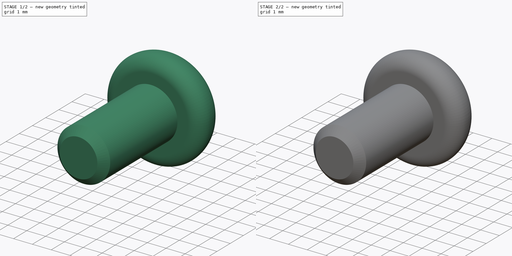
[diagram: build sequence overview — one tinted view per stage of 2, left to right]
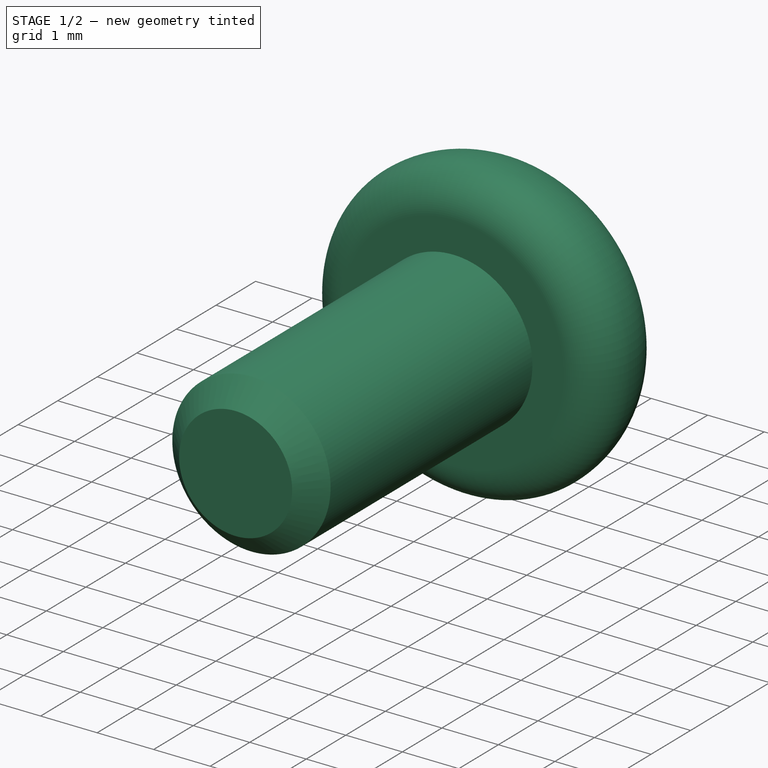
[diagram: stage 1 of 2 — iso view after this stage's code; geometry added in this stage tinted green]
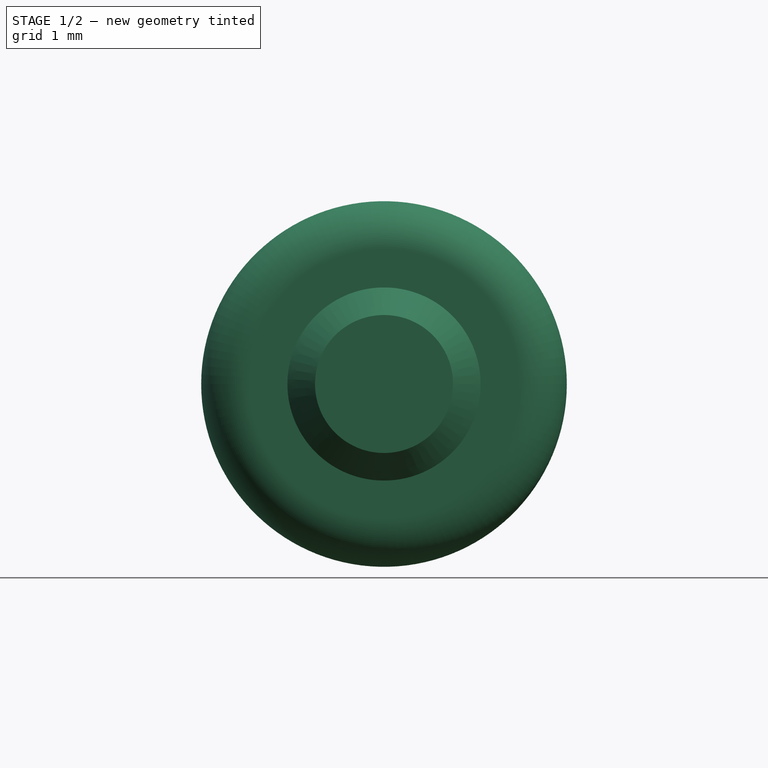
[diagram: stage 1 of 2 — front view after this stage's code; geometry added in this stage tinted green]
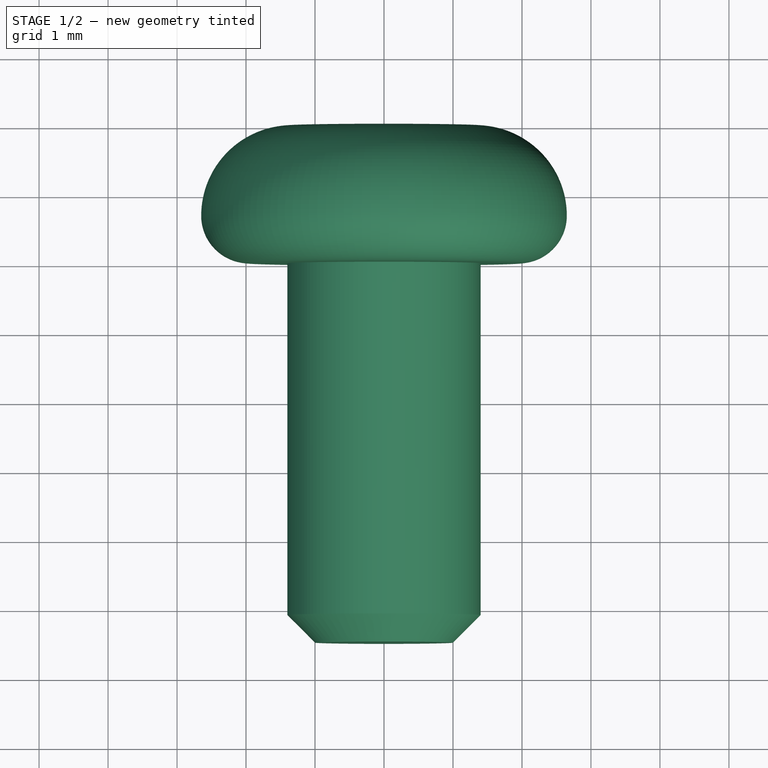
[diagram: stage 1 of 2 — top view after this stage's code; geometry added in this stage tinted green]
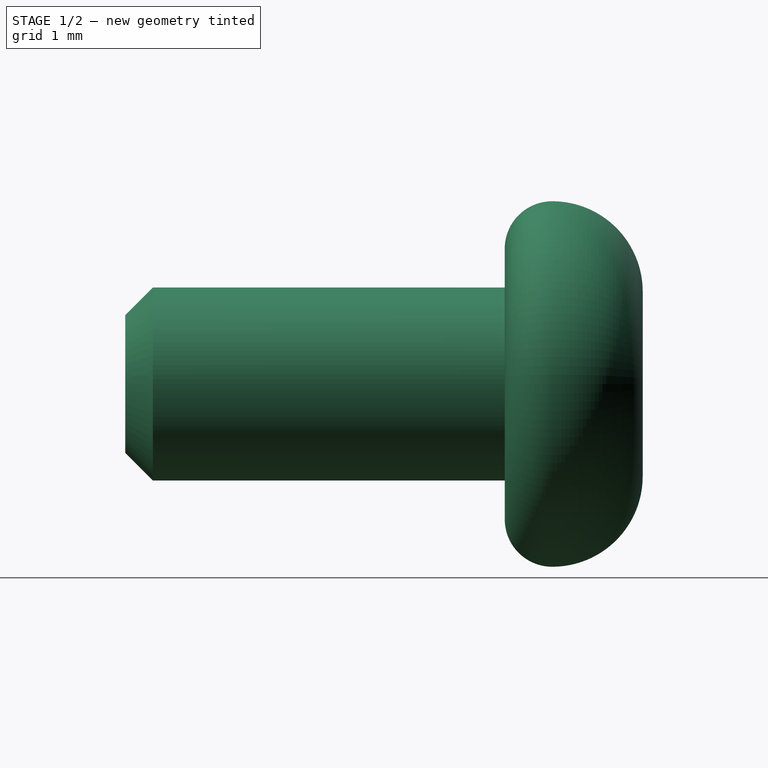
[diagram: stage 1 of 2 — right view after this stage's code; geometry added in this stage tinted green]
FCSTD DOCUMENT  (FreeCAD 0.17R13541 (Git))
Label: skrew-440UNC-hex
License: All rights reserved
LicenseURL: http://en.wikipedia.org/wiki/All_rights_reserved
objects: Sketcher::SketchObject×2, PartDesign::Revolution×1, PartDesign::Pocket×1, PartDesign::Body×1
note: 7 computed .brp shape members not serialized (recipe doc carries the construction recipe); baked Part::Feature solids carry a one-line shape summary decoded from their .brp

FEATURE [Sketcher::SketchObject] Sketch
  MapMode = 5
  Support = -> [XY_Plane]
  sketch-geometry (8):
    g0: LineSegment StartX=0 StartY=-5.5 StartZ=0 EndX=1 EndY=-5.5 EndZ=0
    g1: LineSegment StartX=1.4 StartY=-5.1 StartZ=0 EndX=1.4 EndY=0 EndZ=0
    g2: LineSegment StartX=1.4 StartY=0 StartZ=0 EndX=1.96119 EndY=0 EndZ=0
    g3: LineSegment StartX=1.33881 StartY=2 StartZ=0 EndX=0 EndY=2 EndZ=0
    g4: ArcOfCircle CenterX=1.33881 CenterY=0.688808 CenterZ=0 NormalX=0 NormalY=0 NormalZ=1 AngleXU=0 Radius=1.31119 StartAngle=0 EndAngle=1.5708
    g5: ArcOfCircle CenterX=1.96119 CenterY=0.688808 CenterZ=0 NormalX=0 NormalY=0 NormalZ=1 AngleXU=0 Radius=0.688808 StartAngle=4.71239 EndAngle=6.28319
    g6: LineSegment StartX=0 StartY=2 StartZ=0 EndX=0 EndY=-5.5 EndZ=0
    g7: LineSegment StartX=1 StartY=-5.5 StartZ=0 EndX=1.4 EndY=-5.1 EndZ=0
  constraints (23):
    c: Coincident(g1,g2)
    c: PointOnObject(g3,g-2)
    c: PointOnObject(g0,g-2)
    c: Horizontal(g0)
    c: Vertical(g1)
    c: Horizontal(g2)
    c: Horizontal(g3)
    c: Tangent(g3,g4) = -1.5708
    c: Distance(g0,g3) = 7.5
    c: DistanceY(g1,g3) = 2
    c: Tangent(g2,g5) = -1.5708
    c: Coincident(g5,g4)
    c: DistanceX(g-2,g4) = 2.65
    c: Horizontal(g4,g5)
    c: PointOnObject(g1,g-1)
    c: Coincident(g6,g3)
    c: Coincident(g6,g0)
    c: Horizontal(g5,g4)
    c: Distance(g1,g6) = 1.4
    c: Coincident(g0,g7)
    c: Coincident(g7,g1)
    c: Angle(g7,g0) = 2.35619
    c: Distance(g0) = 1
FEATURE [PartDesign::Revolution] Revolution
  Angle = 360
  Axis = (0,1,0)
  Base = (0,0,0)
  Profile = -> Sketch
  ReferenceAxis = -> Sketch [V_Axis]
  Reversed = true
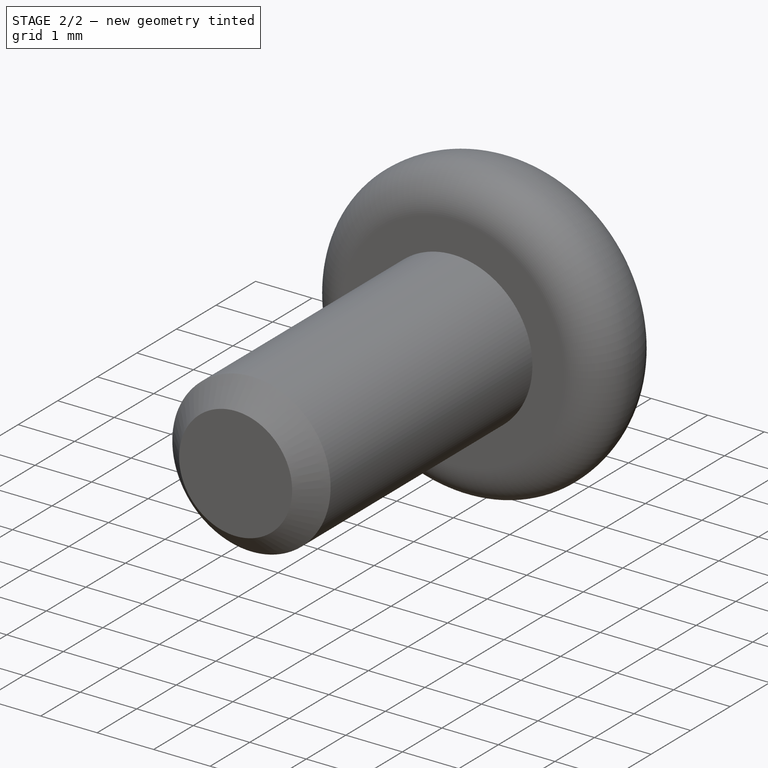
[diagram: stage 2 of 2 — iso view after this stage's code; geometry added in this stage tinted green]
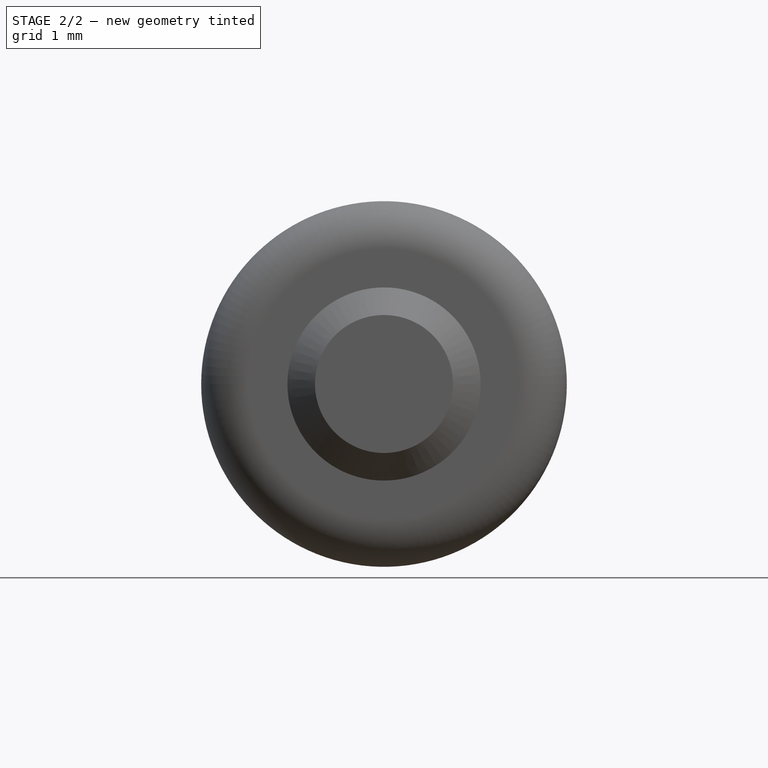
[diagram: stage 2 of 2 — front view after this stage's code; geometry added in this stage tinted green]
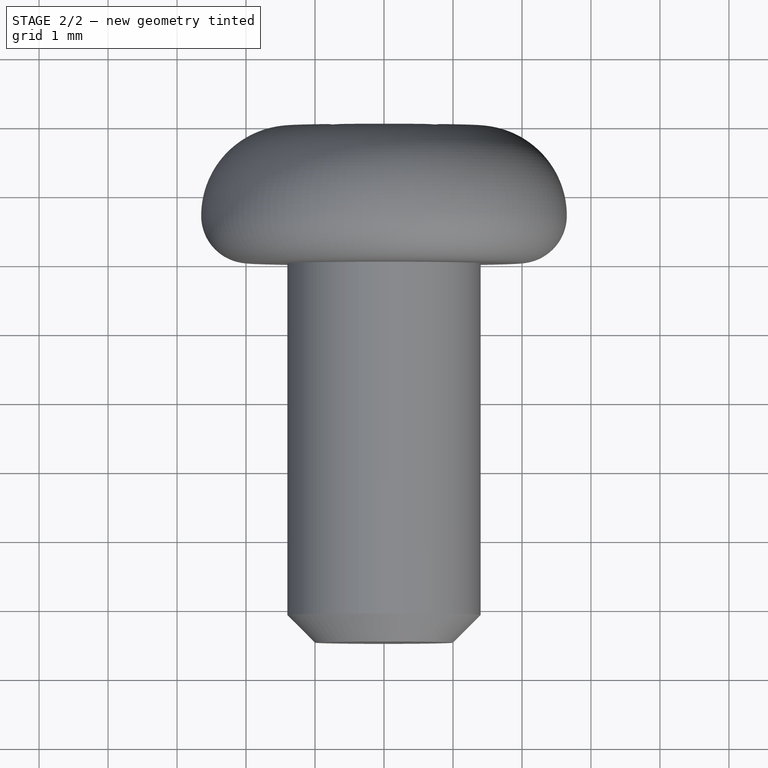
[diagram: stage 2 of 2 — top view after this stage's code; geometry added in this stage tinted green]
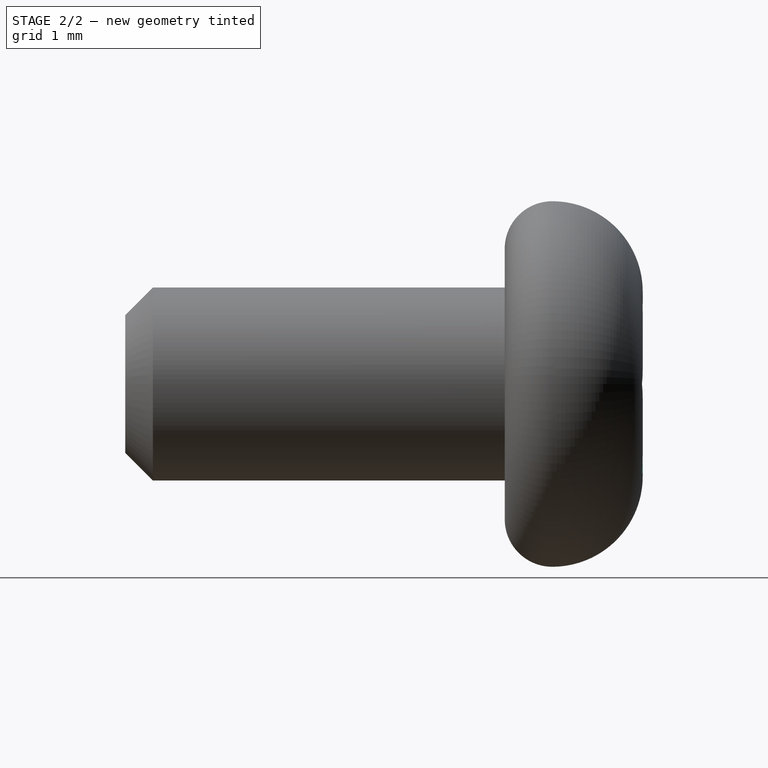
[diagram: stage 2 of 2 — right view after this stage's code; geometry added in this stage tinted green]
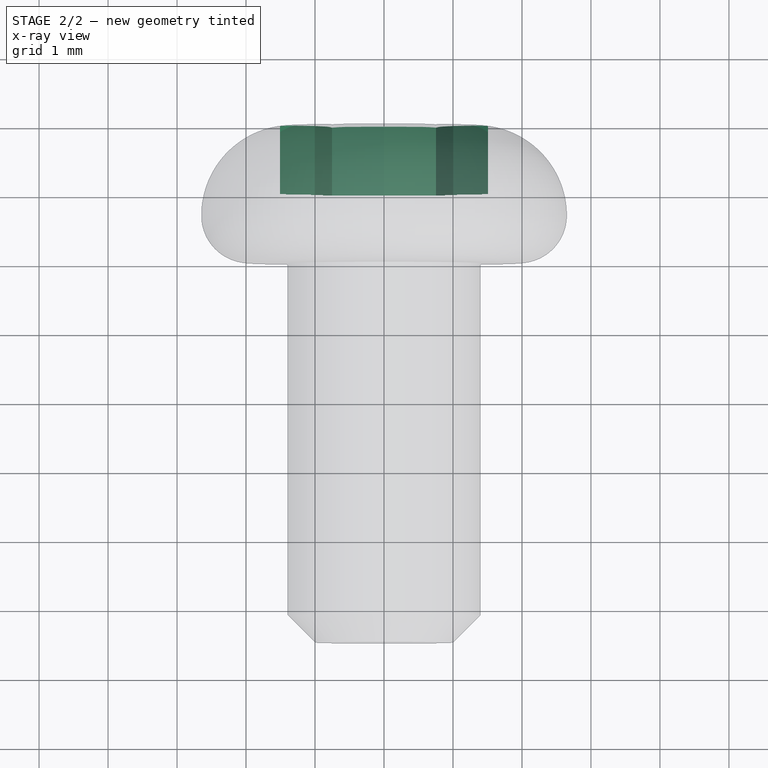
[diagram: stage 2 of 2 — x-ray composite at the top view; earlier geometry ghosted, this stage's added geometry solid]
FEATURE [Sketcher::SketchObject] Sketch001
  MapMode = 5
  Placement = pos=(0,2,0) rot=(0,0.707107,0.707107;3.14159rad)
  Support = -> [Revolution]
  sketch-geometry (26):
    g0: LineSegment [constr] StartX=0.754634 StartY=-1.30706 StartZ=0 EndX=1.50927 EndY=0 EndZ=0
    g1: LineSegment [constr] StartX=1.50927 StartY=0 StartZ=0 EndX=0.754634 EndY=1.30706 EndZ=0
    g2: LineSegment [constr] StartX=0.754634 StartY=1.30706 StartZ=0 EndX=-0.754634 EndY=1.30706 EndZ=0
    g3: LineSegment [constr] StartX=-0.754634 StartY=1.30706 StartZ=0 EndX=-1.50927 EndY=0 EndZ=0
    g4: LineSegment [constr] StartX=-1.50927 StartY=0 StartZ=0 EndX=-0.754634 EndY=-1.30706 EndZ=0
    g5: LineSegment [constr] StartX=-0.754634 StartY=-1.30706 StartZ=0 EndX=0.754634 EndY=-1.30706 EndZ=0
    g6: Circle [constr] CenterX=0 CenterY=0 CenterZ=0 NormalX=0 NormalY=0 NormalZ=1 AngleXU=0 Radius=1.50927
    g7: LineSegment [constr] StartX=1.00302 StartY=0.579091 StartZ=0 EndX=0 EndY=1.15818 EndZ=0
    g8: LineSegment [constr] StartX=0 StartY=1.15818 StartZ=0 EndX=-1.00302 EndY=0.579091 EndZ=0
    g9: LineSegment [constr] StartX=-1.00302 StartY=0.579091 StartZ=0 EndX=-1.00302 EndY=-0.579091 EndZ=0
    g10: LineSegment [constr] StartX=-1.00302 StartY=-0.579091 StartZ=0 EndX=0 EndY=-1.15818 EndZ=0
    g11: LineSegment [constr] StartX=0 StartY=-1.15818 StartZ=0 EndX=1.00302 EndY=-0.579091 EndZ=0
    g12: LineSegment [constr] StartX=1.00302 StartY=-0.579091 StartZ=0 EndX=1.00302 EndY=0.579091 EndZ=0
    g13: Circle [constr] CenterX=0 CenterY=0 CenterZ=0 NormalX=0 NormalY=0 NormalZ=1 AngleXU=0 Radius=1.15818
    g14: LineSegment StartX=0.754634 StartY=1.30706 StartZ=0 EndX=0 EndY=1.15818 EndZ=0
    g15: LineSegment StartX=0 StartY=1.15818 StartZ=0 EndX=-0.754634 EndY=1.30706 EndZ=0
    g16: LineSegment StartX=-0.754634 StartY=1.30706 StartZ=0 EndX=-1.00302 EndY=0.579091 EndZ=0
    g17: LineSegment StartX=-1.00302 StartY=0.579091 StartZ=0 EndX=-1.50927 EndY=0 EndZ=0
    g18: LineSegment StartX=-1.50927 StartY=0 StartZ=0 EndX=-1.00302 EndY=-0.579091 EndZ=0
    g19: LineSegment StartX=-1.00302 StartY=-0.579091 StartZ=0 EndX=-0.754634 EndY=-1.30706 EndZ=0
    g20: LineSegment StartX=-0.754634 StartY=-1.30706 StartZ=0 EndX=0 EndY=-1.15818 EndZ=0
    g21: LineSegment StartX=0 StartY=-1.15818 StartZ=0 EndX=0.754634 EndY=-1.30706 EndZ=0
    g22: LineSegment StartX=0.754634 StartY=-1.30706 StartZ=0 EndX=1.00302 EndY=-0.579091 EndZ=0
    g23: LineSegment StartX=1.00302 StartY=-0.579091 StartZ=0 EndX=1.50927 EndY=0 EndZ=0
    g24: LineSegment StartX=1.50927 StartY=0 StartZ=0 EndX=1.00302 EndY=0.579091 EndZ=0
    g25: LineSegment StartX=1.00302 StartY=0.579091 StartZ=0 EndX=0.754634 EndY=1.30706 EndZ=0
  constraints (54):
    c: Coincident(g0,g1)
    c: Coincident(g1,g2)
    c: Coincident(g2,g3)
    c: Coincident(g3,g4)
    c: Coincident(g4,g5)
    c: Coincident(g5,g0)
    c: Equal(g0, g1-g5) x5
    c: PointOnObject(g0,g6)
    c: PointOnObject(g1,g6)
    c: PointOnObject(g2,g6)
    c: PointOnObject(g3,g6)
    c: PointOnObject(g4,g6)
    c: PointOnObject(g5,g6)
    c: PointOnObject(g0,g-1)
    c: Coincident(g6,g-1)
    c: Coincident(g7,g8)
    c: Coincident(g8,g9)
    c: Coincident(g9,g10)
    c: Coincident(g10,g11)
    c: Coincident(g11,g12)
    c: Coincident(g12,g7)
    c: Equal(g7, g8-g12) x5
    c: PointOnObject(g7,g13)
    c: PointOnObject(g8,g13)
    c: PointOnObject(g9,g13)
    c: PointOnObject(g10,g13)
    c: PointOnObject(g11,g13)
    c: PointOnObject(g12,g13)
    c: Coincident(g13,g-1)
    c: PointOnObject(g7,g-2)
    c: Coincident(g14,g15)
    c: Coincident(g15,g16)
    c: Coincident(g16,g17)
    c: Coincident(g17,g18)
    c: Coincident(g18,g19)
    c: Coincident(g19,g20)
    c: Coincident(g20,g21)
    c: Coincident(g21,g22)
    c: Coincident(g22,g23)
    c: Coincident(g23,g24)
    c: Coincident(g24,g25)
    c: Coincident(g14,g1)
    c: Coincident(g14,g25)
    c: Coincident(g14,g7)
    c: Coincident(g15,g2)
    c: Coincident(g16,g8)
    c: Coincident(g17,g3)
    c: Coincident(g18,g9)
    c: Coincident(g19,g4)
    c: Coincident(g20,g10)
    c: Coincident(g21,g0)
    c: Coincident(g22,g11)
    c: Coincident(g23,g0)
    c: Coincident(g7,g24)
FEATURE [PartDesign::Pocket] Pocket
  BaseFeature = -> Revolution
  Length = 1
  Length2 = 100
  Profile = -> Sketch001
  Type = 0
FEATURE [PartDesign::Body] Body
  Group = -> [Sketch,Revolution,Sketch001,Pocket]
  Origin = -> Origin
  Tip = -> Pocket
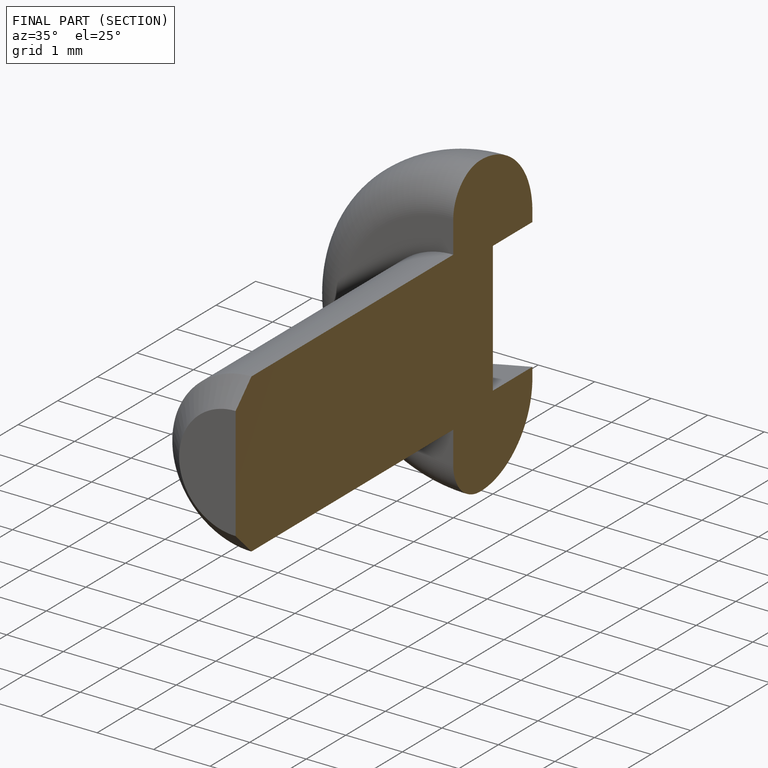
[diagram: finished part — half-section view (interior)]
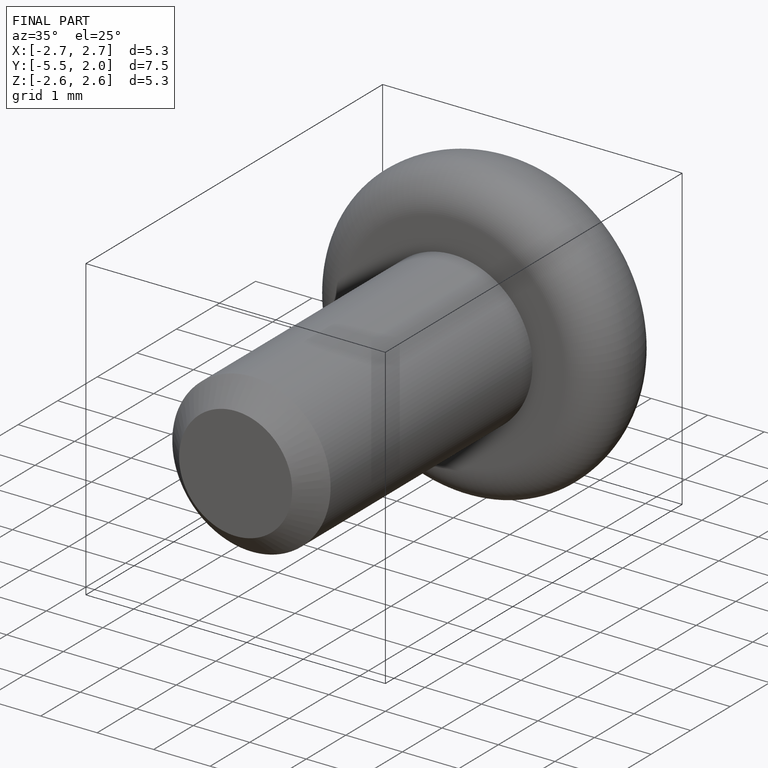
[diagram: finished part — iso view with bounding-box wireframe]
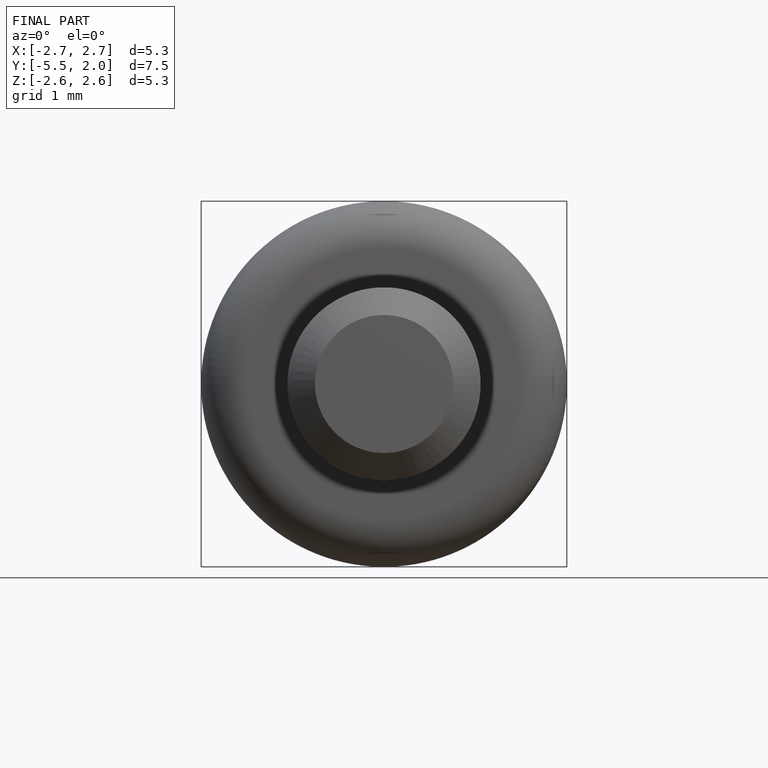
[diagram: finished part — front view with bounding-box wireframe]
